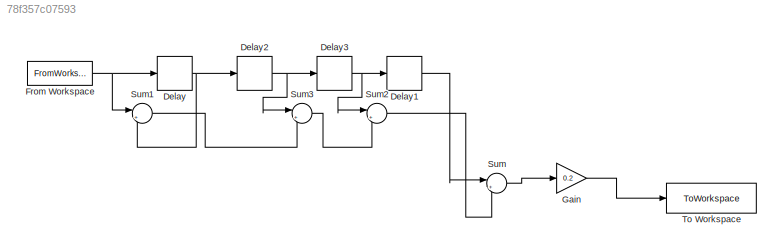
MODEL slx_78f357c07593
KIND model
CONFIG AbsTol = auto
CONFIG EnableMultiTasking = off
CONFIG FixedStep = auto
CONFIG MaxStep = auto
CONFIG MinStep = auto
CONFIG RelTol = 1e-3
CONFIG SampleTimeConstraint = Unconstrained
CONFIG SolverName = VariableStepDiscrete
CONFIG StartTime = 0.0
CONFIG StopTime = 65
BLOCK [Delay] Delay
  DelayLength = 1
  InitialCondition = 0
  InputPortMap = u0
  SampleTime = 1
BLOCK [Delay] Delay1
  DelayLength = 1
  InitialCondition = 0
  InputPortMap = u0
  SampleTime = 1
BLOCK [Delay] Delay2
  DelayLength = 1
  InitialCondition = 0
  InputPortMap = u0
  SampleTime = 1
BLOCK [Delay] Delay3
  DelayLength = 1
  InitialCondition = 0
  InputPortMap = u0
  SampleTime = 1
BLOCK [FromWorkspace] From Workspace
  SampleTime = 1
  VariableName = newData
BLOCK [Gain] Gain
  Gain = 0.2
BLOCK [Sum] Sum
  Inputs = |++
BLOCK [Sum] Sum1
  Inputs = |++
BLOCK [Sum] Sum2
  Inputs = |++
BLOCK [Sum] Sum3
  Inputs = |++
BLOCK [ToWorkspace] To Workspace
  FixptAsFi = on
  MaxDataPoints = inf
  SampleTime = 1
  Save2DSignal = 2-D array (concatenate along first dimension)
  VariableName = ma
LINE Delay1:1 -> Sum:1
NET Delay2:1 -> Delay3:1, Sum3:1
NET Delay3:1 -> Delay1:1, Sum2:1
NET Delay:1 -> Delay2:1, Sum1:2
NET From Workspace:1 -> Delay:1, Sum1:1
LINE Gain:1 -> To Workspace:1
LINE Sum1:1 -> Sum3:2
LINE Sum2:1 -> Sum:2
LINE Sum3:1 -> Sum2:2
LINE Sum:1 -> Gain:1
note: NET lines group one-source signal fan-out (src -> all destinations, sorted); 1:1 wires keep LINE
